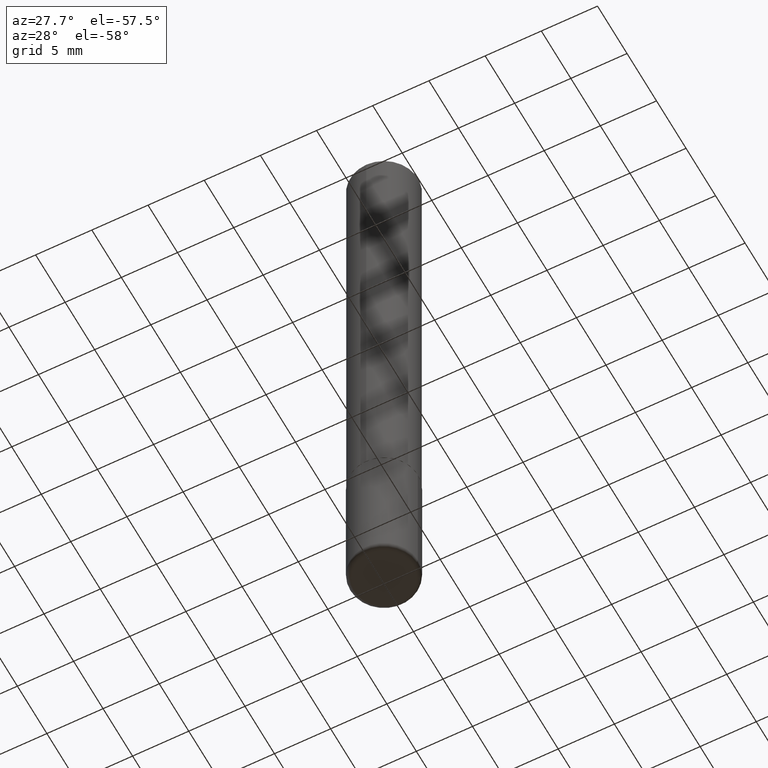
[diagram: clean part render]
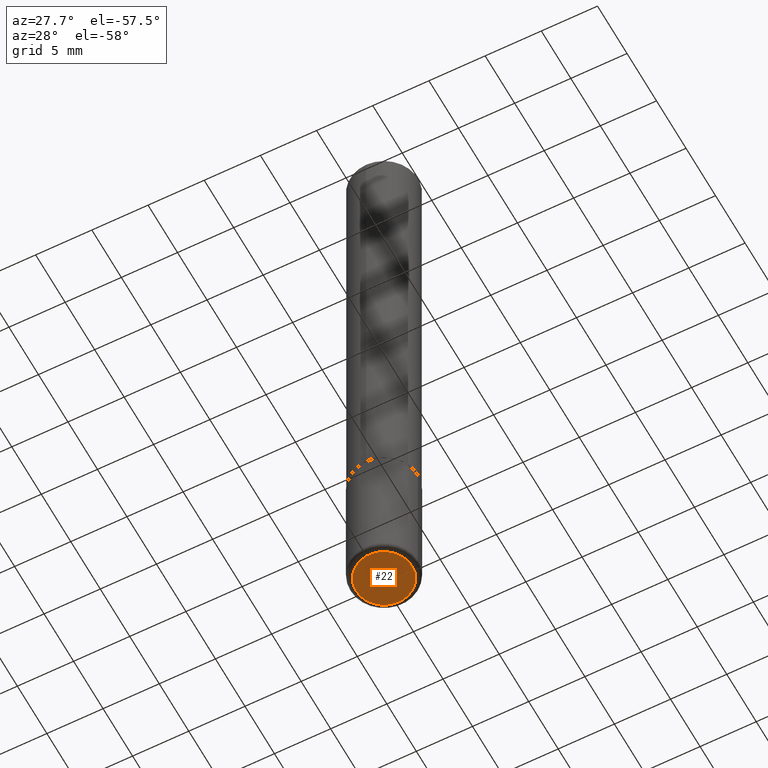
[diagram: same view with one face highlighted and labeled with its STEP entity id]
A machine part, auxiliary view. The second image highlights one B-rep face of the part: STEP entity #22.
In plain terms, the highlighted planar face has unit normal (0, -0, -1).
Its self-contained STEP definition (entity closure, byte-faithful):
#2 = DIRECTION ( 'NONE',  ( -1.000000000000000000, 6.982962677686265922E-15, -4.876176775795935793E-29 ) ) ;
#22 = ADVANCED_FACE ( 'NONE', ( #388 ), #218, .T. ) ;
#52 = AXIS2_PLACEMENT_3D ( 'NONE', #91, #254, #2 ) ;
#78 = VERTEX_POINT ( 'NONE', #283 ) ;
#91 = CARTESIAN_POINT ( 'NONE',  ( 5.487876547960064752E-29, -7.835233272497900762E-15, -2.244099999999999540 ) ) ;
#95 = CIRCLE ( 'NONE', #158, 0.09840000000000002911 ) ;
#116 = VERTEX_POINT ( 'NONE', #348 ) ;
#136 = EDGE_CURVE ( 'NONE', #78, #116, #95, .T. ) ;
#145 = ORIENTED_EDGE ( 'NONE', *, *, #136, .F. ) ;
#158 = AXIS2_PLACEMENT_3D ( 'NONE', #290, #253, #383 ) ;
#179 = ORIENTED_EDGE ( 'NONE', *, *, #395, .F. ) ;
#218 = PLANE ( 'NONE',  #52 ) ;
#243 = DIRECTION ( 'NONE',  ( 1.000000000000000000, -6.982962677686269866E-15, 0.000000000000000000 ) ) ;
#253 = DIRECTION ( 'NONE',  ( -2.445468806185136597E-29, 3.491481338843145583E-15, 1.000000000000000000 ) ) ;
#254 = DIRECTION ( 'NONE',  ( 2.438088387897960049E-29, -3.491481338843145188E-15, -1.000000000000000000 ) ) ;
#269 = CARTESIAN_POINT ( 'NONE',  ( 5.487876547960064752E-29, -7.835233272497900762E-15, -2.244099999999999540 ) ) ;
#283 = CARTESIAN_POINT ( 'NONE',  ( -0.09840000000000002911, -7.031679669849990177E-15, -2.244099999999999540 ) ) ;
#290 = CARTESIAN_POINT ( 'NONE',  ( 5.487876547960064752E-29, -7.835233272497900762E-15, -2.244099999999999540 ) ) ;
#303 = CIRCLE ( 'NONE', #336, 0.09840000000000002911 ) ;
#314 = EDGE_LOOP ( 'NONE', ( #179, #145 ) ) ;
#336 = AXIS2_PLACEMENT_3D ( 'NONE', #269, #367, #243 ) ;
#348 = CARTESIAN_POINT ( 'NONE',  ( 0.09840000000000002911, -8.522356799982231388E-15, -2.244099999999999540 ) ) ;
#367 = DIRECTION ( 'NONE',  ( -2.445468806185136597E-29, 3.491481338843145583E-15, 1.000000000000000000 ) ) ;
#383 = DIRECTION ( 'NONE',  ( 1.000000000000000000, -6.982962677686269866E-15, 0.000000000000000000 ) ) ;
#388 = FACE_OUTER_BOUND ( 'NONE', #314, .T. ) ;
#395 = EDGE_CURVE ( 'NONE', #116, #78, #303, .T. ) ;